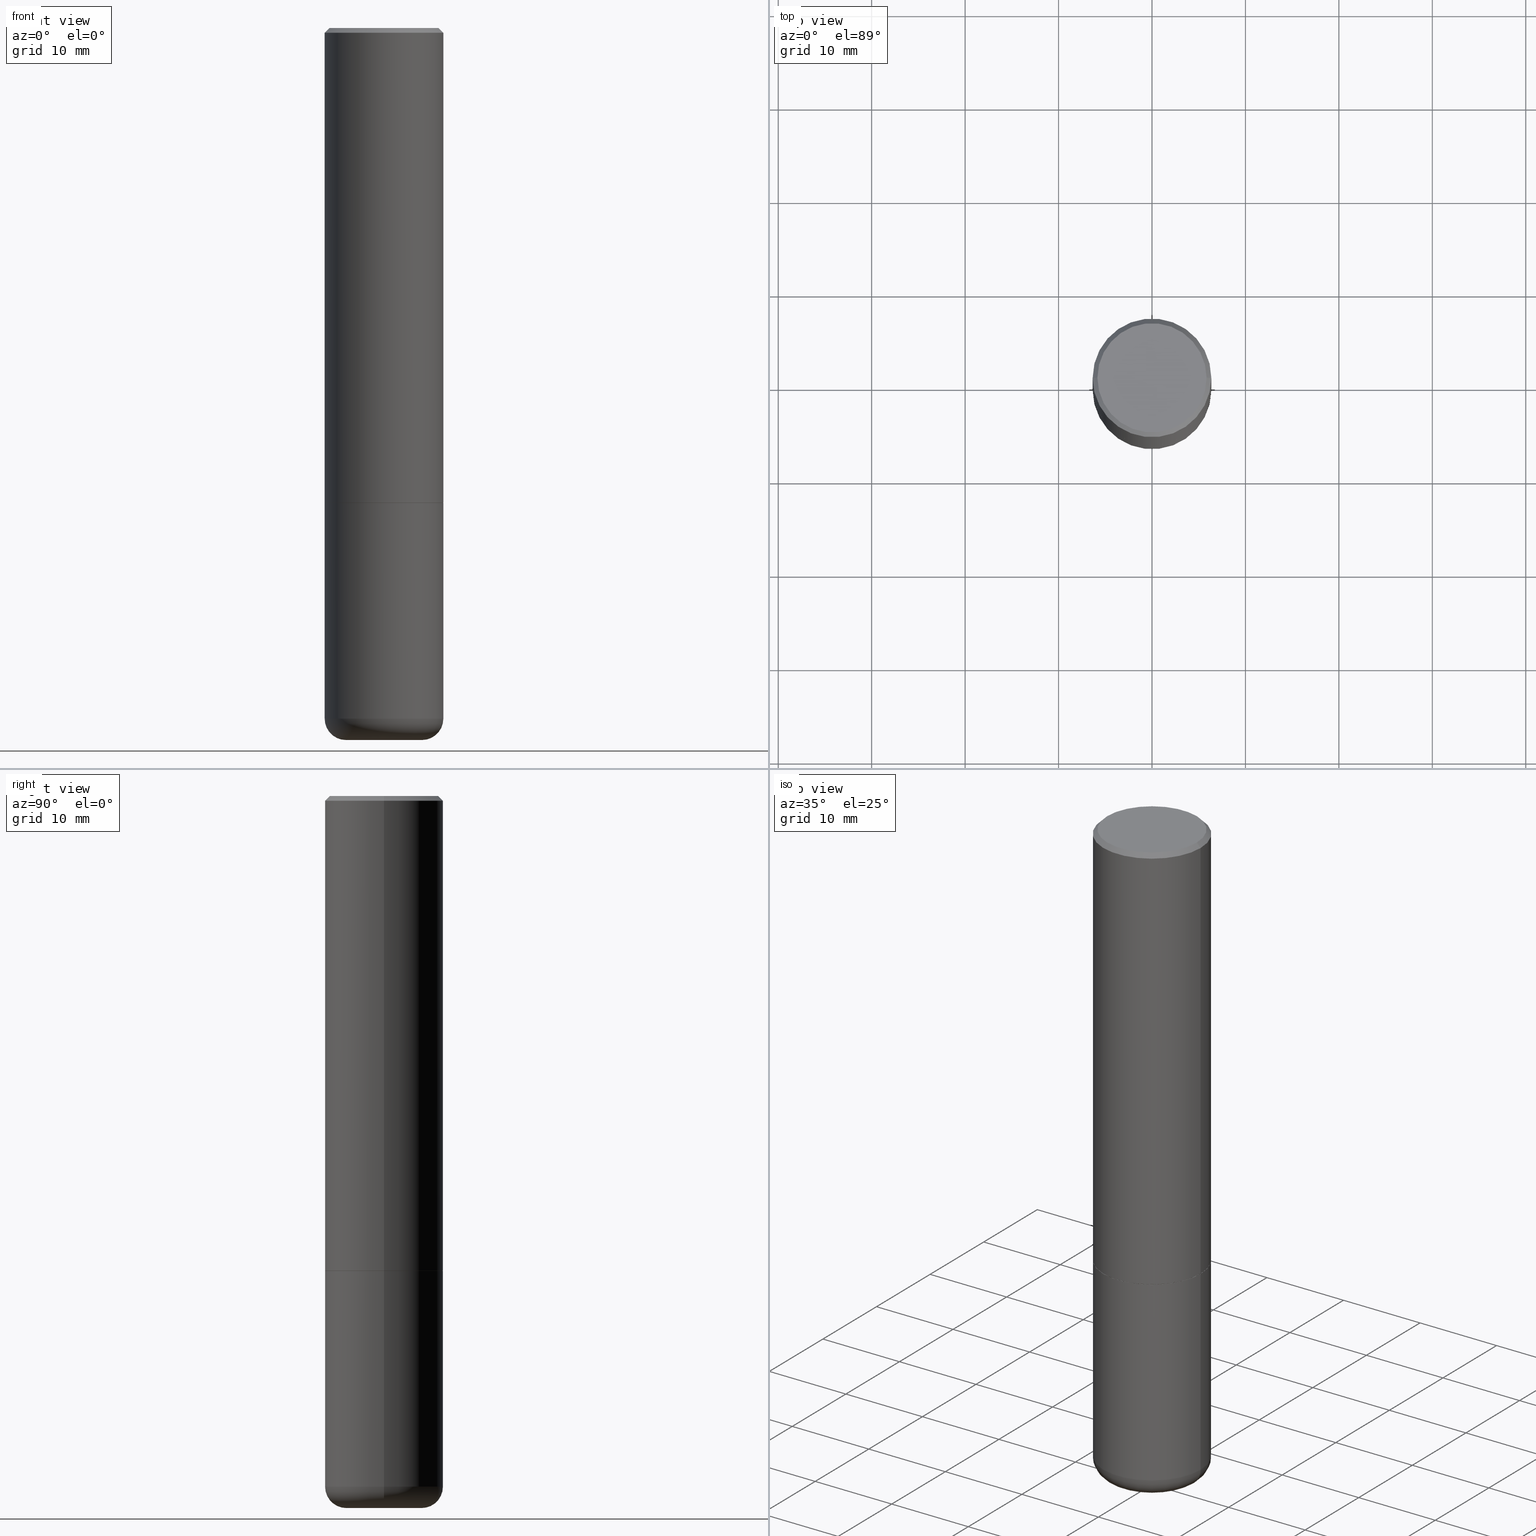
[diagram: canonical four-view strip — front | top / right | iso, engineering-drawing reading convention]
A machine part, canonical four-view strip (front | top / right | iso — engineering-drawing reading convention). The complete STEP part file that produces these views, byte-faithful:
ISO-10303-21;
HEADER;
FILE_DESCRIPTION (( 'STEP AP203' ),
    '1' );
FILE_NAME ('37040.STEP',
    '2024-03-01T19:04:54',
    ( '' ),
    ( '' ),
    'SwSTEP 2.0',
    'SolidWorks 2023',
    '' );
FILE_SCHEMA (( 'CONFIG_CONTROL_DESIGN' ));
ENDSEC;

DATA;
#1 = COORDINATED_UNIVERSAL_TIME_OFFSET ( 5, 0, .BEHIND. ) ;
#2 = CARTESIAN_POINT ( 'NONE',  ( -3.027169101572137302E-45, 4.321995194103296744E-31, 1.237868622129119302E-16 ) ) ;
#3 = DIRECTION ( 'NONE',  ( -2.445468806185136597E-29, 3.491481338843145583E-15, 1.000000000000000000 ) ) ;
#4 = AXIS2_PLACEMENT_3D ( 'NONE', #74, #37, #98 ) ;
#5 = LOCAL_TIME ( 14, 4, 54.00000000000000000, #389 ) ;
#6 = APPLICATION_CONTEXT ( 'configuration controlled 3d designs of mechanical parts and assemblies' ) ;
#7 = DATE_AND_TIME ( #295, #417 ) ;
#8 = CARTESIAN_POINT ( 'NONE',  ( 4.890937612370273754E-29, -6.982962677686291954E-15, -2.000000000000000444 ) ) ;
#9 = DIMENSIONAL_EXPONENTS ( 1.000000000000000000, 0.000000000000000000, 0.000000000000000000, 0.000000000000000000, 0.000000000000000000, 0.000000000000000000, 0.000000000000000000 ) ;
#10 = CARTESIAN_POINT ( 'NONE',  ( 1.449005363638153220E-28, -2.300140402884442060E-16, -2.999999999999999556 ) ) ;
#11 = AXIS2_PLACEMENT_3D ( 'NONE', #358, #217, #32 ) ;
#12 = AXIS2_PLACEMENT_3D ( 'NONE', #179, #81, #228 ) ;
#13 = VERTEX_POINT ( 'NONE', #351 ) ;
#14 = DIRECTION ( 'NONE',  ( -1.000000000000000000, 6.982962677686266711E-15, 0.000000000000000000 ) ) ;
#15 = FACE_OUTER_BOUND ( 'NONE', #275, .T. ) ;
#16 = ORIENTED_EDGE ( 'NONE', *, *, #342, .F. ) ;
#17 = CIRCLE ( 'NONE', #152, 0.2299999999999998712 ) ;
#18 = PRODUCT_DEFINITION_FORMATION_WITH_SPECIFIED_SOURCE ( 'ANY', '', #264, .NOT_KNOWN. ) ;
#19 = CARTESIAN_POINT ( 'NONE',  ( 4.890937612370287172E-31, -6.982962677686310098E-17, -0.02000000000000005593 ) ) ;
#20 = EDGE_LOOP ( 'NONE', ( #380, #202, #405, #44 ) ) ;
#21 = ORIENTED_EDGE ( 'NONE', *, *, #303, .F. ) ;
#22 = CARTESIAN_POINT ( 'NONE',  ( 0.2299999999999998712, -1.681434332853598419E-15, 1.237868622129234180E-16 ) ) ;
#23 = CARTESIAN_POINT ( 'NONE',  ( -0.2489999999999999991, -5.213711265643642498E-15, -2.000000000000000444 ) ) ;
#24 = ORIENTED_EDGE ( 'NONE', *, *, #362, .T. ) ;
#25 = ORIENTED_EDGE ( 'NONE', *, *, #49, .T. ) ;
#26 = EDGE_CURVE ( 'NONE', #247, #378, #17, .T. ) ;
#27 = EDGE_CURVE ( 'NONE', #168, #216, #34, .T. ) ;
#28 = FACE_OUTER_BOUND ( 'NONE', #59, .T. ) ;
#29 = ORIENTED_EDGE ( 'NONE', *, *, #261, .F. ) ;
#30 = DIRECTION ( 'NONE',  ( -1.000000000000000000, 6.982962677686266711E-15, 0.000000000000000000 ) ) ;
#31 = ORIENTED_EDGE ( 'NONE', *, *, #190, .T. ) ;
#32 = DIRECTION ( 'NONE',  ( 1.000000000000000000, -6.982962677686266711E-15, 4.876176775795935793E-29 ) ) ;
#33 = PERSON_AND_ORGANIZATION ( #292, #385 ) ;
#34 = CIRCLE ( 'NONE', #187, 0.08999999999999964972 ) ;
#35 = APPROVAL_PERSON_ORGANIZATION ( #121, #88, #125 ) ;
#36 = DIRECTION ( 'NONE',  ( -2.445468806185136877E-29, 3.491481338843145188E-15, 1.000000000000000000 ) ) ;
#37 = DIRECTION ( 'NONE',  ( -2.445468806185136597E-29, 3.491481338843145583E-15, 1.000000000000000000 ) ) ;
#38 = FACE_OUTER_BOUND ( 'NONE', #20, .T. ) ;
#39 = PERSON_AND_ORGANIZATION ( #292, #385 ) ;
#40 = CIRCLE ( 'NONE', #175, 0.2500000000000000000 ) ;
#41 = DIRECTION ( 'NONE',  ( 1.000000000000000000, -6.982962677686267499E-15, 4.876176775795936353E-29 ) ) ;
#42 = EDGE_CURVE ( 'NONE', #85, #13, #305, .T. ) ;
#43 = CARTESIAN_POINT ( 'NONE',  ( -0.2500000000000000000, 1.675911042644703577E-15, -0.02000000000000005593 ) ) ;
#44 = ORIENTED_EDGE ( 'NONE', *, *, #27, .F. ) ;
#45 = ADVANCED_BREP_SHAPE_REPRESENTATION ( '37040', ( #254, #255, #323 ), #206 ) ;
#46 = DIRECTION ( 'NONE',  ( -2.445468806185136597E-29, 3.491481338843145583E-15, 1.000000000000000000 ) ) ;
#47 = DATE_AND_TIME ( #299, #82 ) ;
#48 = VERTEX_POINT ( 'NONE', #343 ) ;
#49 = EDGE_CURVE ( 'NONE', #220, #13, #162, .T. ) ;
#50 = DIRECTION ( 'NONE',  ( -2.445468806185136597E-29, 3.491481338843145583E-15, 1.000000000000000000 ) ) ;
#51 = ORIENTED_EDGE ( 'NONE', *, *, #224, .F. ) ;
#52 = CARTESIAN_POINT ( 'NONE',  ( 4.890937612370287172E-31, -6.982962677686310098E-17, -0.02000000000000005593 ) ) ;
#53 = CLOSED_SHELL ( 'NONE', ( #76, #222, #415, #164, #294, #197 ) ) ;
#54 = CYLINDRICAL_SURFACE ( 'NONE', #354, 0.2500000000000001110 ) ;
#55 = CIRCLE ( 'NONE', #401, 0.1600000000000000033 ) ;
#56 = PRODUCT_RELATED_PRODUCT_CATEGORY ( 'detail', '', ( #264 ) ) ;
#57 = ORIENTED_EDGE ( 'NONE', *, *, #26, .F. ) ;
#58 = ORIENTED_EDGE ( 'NONE', *, *, #124, .T. ) ;
#59 = EDGE_LOOP ( 'NONE', ( #29, #313, #345, #375 ) ) ;
#60 = CARTESIAN_POINT ( 'NONE',  ( 7.116314225998749245E-29, -1.016021069603355467E-14, -2.910000000000000586 ) ) ;
#61 =( NAMED_UNIT ( * ) PLANE_ANGLE_UNIT ( ) SI_UNIT ( $, .RADIAN. ) );
#62 = EDGE_CURVE ( 'NONE', #302, #48, #95, .T. ) ;
#63 = CC_DESIGN_APPROVAL ( #88, ( #396 ) ) ;
#64 = LINE ( 'NONE', #23, #68 ) ;
#65 = DIRECTION ( 'NONE',  ( 2.445468806185136597E-29, -3.491481338843145583E-15, -1.000000000000000000 ) ) ;
#66 = PERSON_AND_ORGANIZATION_ROLE ( 'design_supplier' ) ;
#67 = CONICAL_SURFACE ( 'NONE', #89, 0.2489999999999999991, 0.7853981633975336552 ) ;
#68 = VECTOR ( 'NONE', #246, 39.37007874015748143 ) ;
#69 = SECURITY_CLASSIFICATION_LEVEL ( 'unclassified' ) ;
#70 = APPROVAL_STATUS ( 'not_yet_approved' ) ;
#71 = DIRECTION ( 'NONE',  ( 2.438088387897960049E-29, -3.491481338843145188E-15, -1.000000000000000000 ) ) ;
#72 = APPROVAL_ROLE ( '' ) ;
#73 = SHAPE_DEFINITION_REPRESENTATION ( #262, #45 ) ;
#74 = CARTESIAN_POINT ( 'NONE',  ( 7.116314225998749245E-29, -1.016021069603355467E-14, -2.910000000000000586 ) ) ;
#75 = CARTESIAN_POINT ( 'NONE',  ( 7.116314225998749245E-29, -1.016021069603355467E-14, -2.910000000000000586 ) ) ;
#76 = ADVANCED_FACE ( 'NONE', ( #219 ), #97, .T. ) ;
#77 = CIRCLE ( 'NONE', #252, 0.2500000000000002220 ) ;
#78 = ORIENTED_EDGE ( 'NONE', *, *, #293, .T. ) ;
#79 = ORIENTED_EDGE ( 'NONE', *, *, #42, .F. ) ;
#80 = ADVANCED_FACE ( 'NONE', ( #127 ), #103, .F. ) ;
#81 = DIRECTION ( 'NONE',  ( -2.445468806185136597E-29, 3.491481338843145583E-15, 1.000000000000000000 ) ) ;
#82 = LOCAL_TIME ( 14, 4, 54.00000000000000000, #332 ) ;
#83 = DIRECTION ( 'NONE',  ( 1.000000000000000000, -6.982962677686266711E-15, 0.000000000000000000 ) ) ;
#84 = DIRECTION ( 'NONE',  ( 0.7071067811866078578, -2.468850131082888544E-15, 0.7071067811864871766 ) ) ;
#85 = VERTEX_POINT ( 'NONE', #301 ) ;
#86 = DIRECTION ( 'NONE',  ( -2.445468806185136597E-29, 3.491481338843145583E-15, 1.000000000000000000 ) ) ;
#87 = ORIENTED_EDGE ( 'NONE', *, *, #267, .T. ) ;
#88 = APPROVAL ( #288, 'UNSPECIFIED' ) ;
#89 = AXIS2_PLACEMENT_3D ( 'NONE', #156, #381, #213 ) ;
#90 = CARTESIAN_POINT ( 'NONE',  ( 4.890937612370287172E-31, -6.982962677686310098E-17, -0.02000000000000005593 ) ) ;
#91 = ORIENTED_EDGE ( 'NONE', *, *, #352, .T. ) ;
#92 = DIRECTION ( 'NONE',  ( 1.000000000000000000, -6.982962677686266711E-15, 0.000000000000000000 ) ) ;
#93 = APPROVAL_DATE_TIME ( #7, #192 ) ;
#94 = PERSON_AND_ORGANIZATION ( #292, #385 ) ;
#95 = CIRCLE ( 'NONE', #384, 0.2500000000000000000 ) ;
#96 = AXIS2_PLACEMENT_3D ( 'NONE', #256, #3, #123 ) ;
#97 = CYLINDRICAL_SURFACE ( 'NONE', #11, 0.2500000000000000000 ) ;
#98 = DIRECTION ( 'NONE',  ( 1.000000000000000000, -6.982962677686265133E-15, 4.883557194083112340E-29 ) ) ;
#99 = EDGE_CURVE ( 'NONE', #263, #280, #395, .T. ) ;
#100 = DIRECTION ( 'NONE',  ( -2.438088387897960049E-29, 3.491481338843145188E-15, 1.000000000000000000 ) ) ;
#101 = LOCAL_TIME ( 14, 4, 54.00000000000000000, #1 ) ;
#102 = ORIENTED_EDGE ( 'NONE', *, *, #261, .T. ) ;
#103 = PLANE ( 'NONE',  #232 ) ;
#104 = LINE ( 'NONE', #231, #279 ) ;
#105 = ADVANCED_FACE ( 'NONE', ( #196 ), #165, .T. ) ;
#106 = CONICAL_SURFACE ( 'NONE', #96, 0.2489999999999999991, 0.7853981633975336552 ) ;
#107 = EDGE_LOOP ( 'NONE', ( #210, #102, #16, #139 ) ) ;
#108 = EDGE_CURVE ( 'NONE', #181, #220, #296, .T. ) ;
#109 = ORIENTED_EDGE ( 'NONE', *, *, #49, .F. ) ;
#110 = ORIENTED_EDGE ( 'NONE', *, *, #379, .T. ) ;
#111 = VECTOR ( 'NONE', #204, 39.37007874015748143 ) ;
#112 = CARTESIAN_POINT ( 'NONE',  ( 7.336406418555408669E-29, -1.047444401652943478E-14, -2.999999999999999556 ) ) ;
#113 = CARTESIAN_POINT ( 'NONE',  ( 4.890937612370273754E-29, -6.982962677686291954E-15, -2.000000000000000444 ) ) ;
#114 = ORIENTED_EDGE ( 'NONE', *, *, #190, .F. ) ;
#115 = CC_DESIGN_PERSON_AND_ORGANIZATION_ASSIGNMENT ( #321, #357, ( #234 ) ) ;
#116 = DIRECTION ( 'NONE',  ( 1.000000000000000000, -6.982962677686266711E-15, 4.876176775795935793E-29 ) ) ;
#117 = ORIENTED_EDGE ( 'NONE', *, *, #257, .F. ) ;
#118 = AXIS2_PLACEMENT_3D ( 'NONE', #239, #214, #209 ) ;
#119 = DATE_TIME_ROLE ( 'creation_date' ) ;
#120 = CC_DESIGN_PERSON_AND_ORGANIZATION_ASSIGNMENT ( #39, #66, ( #18 ) ) ;
#121 = PERSON_AND_ORGANIZATION ( #292, #385 ) ;
#122 = AXIS2_PLACEMENT_3D ( 'NONE', #113, #212, #314 ) ;
#123 = DIRECTION ( 'NONE',  ( 1.000000000000000000, -6.982962677686266711E-15, 0.000000000000000000 ) ) ;
#124 = EDGE_CURVE ( 'NONE', #378, #247, #289, .T. ) ;
#125 = APPROVAL_ROLE ( '' ) ;
#126 = DIRECTION ( 'NONE',  ( 2.438088387897960049E-29, -3.491481338843145188E-15, -1.000000000000000000 ) ) ;
#127 = FACE_OUTER_BOUND ( 'NONE', #245, .T. ) ;
#128 = AXIS2_PLACEMENT_3D ( 'NONE', #174, #201, #14 ) ;
#129 = EDGE_CURVE ( 'NONE', #216, #48, #390, .T. ) ;
#130 = DIRECTION ( 'NONE',  ( 1.000000000000000000, -6.982962677686270655E-15, 0.000000000000000000 ) ) ;
#131 = ADVANCED_FACE ( 'NONE', ( #189 ), #67, .T. ) ;
#132 = ORIENTED_EDGE ( 'NONE', *, *, #303, .T. ) ;
#133 = DIRECTION ( 'NONE',  ( -2.445468806185136597E-29, 3.491481338843145583E-15, 1.000000000000000000 ) ) ;
#134 = ORIENTED_EDGE ( 'NONE', *, *, #379, .F. ) ;
#135 = CARTESIAN_POINT ( 'NONE',  ( 0.000000000000000000, 0.000000000000000000, 0.000000000000000000 ) ) ;
#136 = CARTESIAN_POINT ( 'NONE',  ( 4.888492143564088712E-29, -6.979471196347448158E-15, -1.999000000000000110 ) ) ;
#137 = CARTESIAN_POINT ( 'NONE',  ( 4.888492143564088712E-29, -6.979471196347448158E-15, -1.999000000000000110 ) ) ;
#138 = EDGE_LOOP ( 'NONE', ( #185, #404, #31, #25 ) ) ;
#139 = ORIENTED_EDGE ( 'NONE', *, *, #129, .F. ) ;
#140 = EDGE_LOOP ( 'NONE', ( #157, #24, #237, #117 ) ) ;
#141 =( LENGTH_UNIT ( ) NAMED_UNIT ( * ) SI_UNIT ( $, .METRE. ) );
#142 = FACE_OUTER_BOUND ( 'NONE', #140, .T. ) ;
#143 = CIRCLE ( 'NONE', #118, 0.1600000000000000033 ) ;
#144 = CARTESIAN_POINT ( 'NONE',  ( 0.2500000000000000000, -1.745740669421566678E-15, 1.219044193948983948E-29 ) ) ;
#145 = DIRECTION ( 'NONE',  ( 1.000000000000000000, -6.982962677686265133E-15, 4.883557194083112340E-29 ) ) ;
#146 = DIRECTION ( 'NONE',  ( -2.445468806185136597E-29, 3.491481338843145583E-15, 1.000000000000000000 ) ) ;
#147 = DIRECTION ( 'NONE',  ( 0.000000000000000000, 0.000000000000000000, 1.000000000000000000 ) ) ;
#148 = DIRECTION ( 'NONE',  ( 1.000000000000000000, -6.982962677686266711E-15, 4.879110437680778240E-29 ) ) ;
#149 = ORIENTED_EDGE ( 'NONE', *, *, #62, .T. ) ;
#150 = CARTESIAN_POINT ( 'NONE',  ( -0.2500000000000002220, -1.748293572161901516E-15, -1.999000000000000110 ) ) ;
#151 = APPROVAL_ROLE ( '' ) ;
#152 = AXIS2_PLACEMENT_3D ( 'NONE', #172, #146, #281 ) ;
#153 = CIRCLE ( 'NONE', #315, 0.2489999999999999991 ) ;
#154 = ORIENTED_EDGE ( 'NONE', *, *, #224, .T. ) ;
#155 = PERSON_AND_ORGANIZATION_ROLE ( 'classification_officer' ) ;
#156 = CARTESIAN_POINT ( 'NONE',  ( 4.890937612370273754E-29, -6.982962677686291954E-15, -2.000000000000000444 ) ) ;
#157 = ORIENTED_EDGE ( 'NONE', *, *, #99, .F. ) ;
#158 = PERSON_AND_ORGANIZATION ( #292, #385 ) ;
#159 = APPROVAL_DATE_TIME ( #325, #355 ) ;
#160 = DATE_AND_TIME ( #418, #300 ) ;
#161 = ORIENTED_EDGE ( 'NONE', *, *, #26, .T. ) ;
#162 = CIRCLE ( 'NONE', #400, 0.2500000000000000000 ) ;
#163 = CC_DESIGN_PERSON_AND_ORGANIZATION_ASSIGNMENT ( #158, #155, ( #396 ) ) ;
#164 = ADVANCED_FACE ( 'NONE', ( #28 ), #319, .T. ) ;
#165 = CYLINDRICAL_SURFACE ( 'NONE', #205, 0.2500000000000001110 ) ;
#166 = AXIS2_PLACEMENT_3D ( 'NONE', #282, #414, #116 ) ;
#167 = TOROIDAL_SURFACE ( 'NONE', #269, 0.1600000000000000033, 0.08999999999999964972 ) ;
#168 = VERTEX_POINT ( 'NONE', #251 ) ;
#169 = ORIENTED_EDGE ( 'NONE', *, *, #108, .F. ) ;
#170 = DIRECTION ( 'NONE',  ( -2.445468806185136597E-29, 3.491481338843145583E-15, 1.000000000000000000 ) ) ;
#171 = ADVANCED_FACE ( 'NONE', ( #383 ), #407, .T. ) ;
#172 = CARTESIAN_POINT ( 'NONE',  ( -3.027169101572137302E-45, 4.321995194103296744E-31, 1.237868622129119302E-16 ) ) ;
#173 = CARTESIAN_POINT ( 'NONE',  ( 0.2499999999999998335, -1.190595136545512292E-14, -2.910000000000000586 ) ) ;
#174 = CARTESIAN_POINT ( 'NONE',  ( 4.890937612370287172E-31, -6.982962677686310098E-17, -0.02000000000000005593 ) ) ;
#175 = AXIS2_PLACEMENT_3D ( 'NONE', #60, #133, #184 ) ;
#176 = DIRECTION ( 'NONE',  ( -2.445468806185136597E-29, 3.491481338843145583E-15, 1.000000000000000000 ) ) ;
#177 = PLANE ( 'NONE',  #244 ) ;
#178 = ORIENTED_EDGE ( 'NONE', *, *, #108, .T. ) ;
#179 = CARTESIAN_POINT ( 'NONE',  ( 4.890937612370273754E-29, -6.982962677686291954E-15, -2.000000000000000444 ) ) ;
#180 = DIRECTION ( 'NONE',  ( 1.000000000000000000, -6.982962677686266711E-15, 0.000000000000000000 ) ) ;
#181 = VERTEX_POINT ( 'NONE', #150 ) ;
#182 = CC_DESIGN_DATE_AND_TIME_ASSIGNMENT ( #160, #119, ( #234 ) ) ;
#183 = DIRECTION ( 'NONE',  ( 1.000000000000000000, -6.982962677686271444E-15, 0.000000000000000000 ) ) ;
#184 = DIRECTION ( 'NONE',  ( 1.000000000000000000, -6.982962677686270655E-15, 0.000000000000000000 ) ) ;
#185 = ORIENTED_EDGE ( 'NONE', *, *, #267, .F. ) ;
#186 = AXIS2_PLACEMENT_3D ( 'NONE', #75, #344, #130 ) ;
#187 = AXIS2_PLACEMENT_3D ( 'NONE', #413, #371, #340 ) ;
#188 = CONICAL_SURFACE ( 'NONE', #128, 0.2500000000000000000, 0.7853981633974471688 ) ;
#189 = FACE_OUTER_BOUND ( 'NONE', #283, .T. ) ;
#190 = EDGE_CURVE ( 'NONE', #378, #220, #367, .T. ) ;
#191 = CALENDAR_DATE ( 2024, 1, 3 ) ;
#192 = APPROVAL ( #359, 'UNSPECIFIED' ) ;
#193 = VECTOR ( 'NONE', #36, 39.37007874015748143 ) ;
#194 = PLANE ( 'NONE',  #322 ) ;
#195 = APPROVAL_PERSON_ORGANIZATION ( #94, #192, #72 ) ;
#196 = FACE_OUTER_BOUND ( 'NONE', #402, .T. ) ;
#197 = ADVANCED_FACE ( 'NONE', ( #368 ), #194, .T. ) ;
#198 = APPROVAL_DATE_TIME ( #47, #88 ) ;
#199 = DIRECTION ( 'NONE',  ( -2.445468806185136877E-29, 3.491481338843145188E-15, 1.000000000000000000 ) ) ;
#200 = TOROIDAL_SURFACE ( 'NONE', #4, 0.1600000000000000033, 0.08999999999999964972 ) ;
#201 = DIRECTION ( 'NONE',  ( 2.445468806185136597E-29, -3.491481338843145583E-15, -1.000000000000000000 ) ) ;
#202 = ORIENTED_EDGE ( 'NONE', *, *, #99, .T. ) ;
#203 = CARTESIAN_POINT ( 'NONE',  ( -0.1600000000000000033, -8.860714747973291991E-15, -2.999999999999999556 ) ) ;
#204 = DIRECTION ( 'NONE',  ( -2.445468806185136877E-29, 3.491481338843145188E-15, 1.000000000000000000 ) ) ;
#205 = AXIS2_PLACEMENT_3D ( 'NONE', #331, #46, #41 ) ;
#206 =( GEOMETRIC_REPRESENTATION_CONTEXT ( 3 ) GLOBAL_UNCERTAINTY_ASSIGNED_CONTEXT ( ( #374 ) ) GLOBAL_UNIT_ASSIGNED_CONTEXT ( ( #208, #61, #349 ) ) REPRESENTATION_CONTEXT ( 'NONE', 'WORKASPACE' ) );
#207 = APPLICATION_CONTEXT ( 'configuration controlled 3d designs of mechanical parts and assemblies' ) ;
#208 =( CONVERSION_BASED_UNIT ( 'INCH', #211 ) LENGTH_UNIT ( ) NAMED_UNIT ( #9 ) );
#209 = DIRECTION ( 'NONE',  ( 1.000000000000000000, -6.982962677686271444E-15, 0.000000000000000000 ) ) ;
#210 = ORIENTED_EDGE ( 'NONE', *, *, #399, .T. ) ;
#211 = LENGTH_MEASURE_WITH_UNIT ( LENGTH_MEASURE( 0.02539999999999999897 ), #141 );
#212 = DIRECTION ( 'NONE',  ( -2.445468806185136597E-29, 3.491481338843145583E-15, 1.000000000000000000 ) ) ;
#213 = DIRECTION ( 'NONE',  ( 1.000000000000000000, -6.982962677686266711E-15, 0.000000000000000000 ) ) ;
#214 = DIRECTION ( 'NONE',  ( -2.445468806185136597E-29, 3.491481338843145583E-15, 1.000000000000000000 ) ) ;
#215 = AXIS2_PLACEMENT_3D ( 'NONE', #8, #126, #346 ) ;
#216 = VERTEX_POINT ( 'NONE', #173 ) ;
#217 = DIRECTION ( 'NONE',  ( -2.445468806185136597E-29, 3.491481338843145583E-15, 1.000000000000000000 ) ) ;
#218 = COORDINATED_UNIVERSAL_TIME_OFFSET ( 5, 0, .BEHIND. ) ;
#219 = FACE_OUTER_BOUND ( 'NONE', #107, .T. ) ;
#220 = VERTEX_POINT ( 'NONE', #326 ) ;
#221 = APPLICATION_PROTOCOL_DEFINITION ( 'international standard', 'config_control_design', 1994, #6 ) ;
#222 = ADVANCED_FACE ( 'NONE', ( #38 ), #200, .T. ) ;
#223 = ADVANCED_FACE ( 'NONE', ( #226 ), #188, .T. ) ;
#224 = EDGE_CURVE ( 'NONE', #253, #285, #286, .T. ) ;
#225 = CC_DESIGN_APPROVAL ( #355, ( #18 ) ) ;
#226 = FACE_OUTER_BOUND ( 'NONE', #235, .T. ) ;
#227 = CARTESIAN_POINT ( 'NONE',  ( 4.890937612370273754E-29, -6.982962677686291954E-15, -2.000000000000000444 ) ) ;
#228 = DIRECTION ( 'NONE',  ( 1.000000000000000000, -6.982962677686266711E-15, 0.000000000000000000 ) ) ;
#229 = DIRECTION ( 'NONE',  ( 1.000000000000000000, -6.982962677686265922E-15, 4.876176775795935793E-29 ) ) ;
#230 = ADVANCED_FACE ( 'NONE', ( #312 ), #54, .T. ) ;
#231 = CARTESIAN_POINT ( 'NONE',  ( -0.2500000000000000000, 1.776356839400250465E-15, -1.229733772563726445E-29 ) ) ;
#232 = AXIS2_PLACEMENT_3D ( 'NONE', #227, #100, #229 ) ;
#233 = AXIS2_PLACEMENT_3D ( 'NONE', #136, #274, #241 ) ;
#234 = PRODUCT_DEFINITION ( 'UNKNOWN', '', #18, #329 ) ;
#235 = EDGE_LOOP ( 'NONE', ( #57, #87, #110, #114 ) ) ;
#236 = CARTESIAN_POINT ( 'NONE',  ( 0.2500000000000000000, -1.784954126219746189E-15, -0.02000000000000005593 ) ) ;
#237 = ORIENTED_EDGE ( 'NONE', *, *, #27, .T. ) ;
#238 = CARTESIAN_POINT ( 'NONE',  ( -0.2489999999999999991, -5.208412811295419307E-15, -2.000000000000000444 ) ) ;
#239 = CARTESIAN_POINT ( 'NONE',  ( 7.336406418555408669E-29, -1.047444401652943478E-14, -2.999999999999999556 ) ) ;
#240 = EDGE_LOOP ( 'NONE', ( #410, #149 ) ) ;
#241 = DIRECTION ( 'NONE',  ( 1.000000000000000000, -6.982962677686268288E-15, 0.000000000000000000 ) ) ;
#242 = DIRECTION ( 'NONE',  ( -2.445468806185136597E-29, 3.491481338843145583E-15, 1.000000000000000000 ) ) ;
#243 = VECTOR ( 'NONE', #411, 39.37007874015748143 ) ;
#244 = AXIS2_PLACEMENT_3D ( 'NONE', #341, #271, #268 ) ;
#245 = EDGE_LOOP ( 'NONE', ( #51, #21 ) ) ;
#246 = DIRECTION ( 'NONE',  ( -0.7071067811866078578, 7.493145998870571886E-15, 0.7071067811864871766 ) ) ;
#247 = VERTEX_POINT ( 'NONE', #22 ) ;
#248 = DIRECTION ( 'NONE',  ( -2.445468806185136597E-29, 3.491481338843145583E-15, 1.000000000000000000 ) ) ;
#249 = ADVANCED_FACE ( 'NONE', ( #15 ), #177, .F. ) ;
#250 = DIRECTION ( 'NONE',  ( 1.000000000000000000, 0.000000000000000000, 0.000000000000000000 ) ) ;
#251 = CARTESIAN_POINT ( 'NONE',  ( 0.1600000000000000033, -1.159171804495923808E-14, -2.999999999999999556 ) ) ;
#252 = AXIS2_PLACEMENT_3D ( 'NONE', #137, #242, #412 ) ;
#253 = VERTEX_POINT ( 'NONE', #397 ) ;
#254 = MANIFOLD_SOLID_BREP ( 'Body-Move/Copy2[1]', #53 ) ;
#255 = MANIFOLD_SOLID_BREP ( 'Body-Move/Copy2[2]', #353 ) ;
#256 = CARTESIAN_POINT ( 'NONE',  ( 4.890937612370273754E-29, -6.982962677686291954E-15, -2.000000000000000444 ) ) ;
#257 = EDGE_CURVE ( 'NONE', #280, #216, #336, .T. ) ;
#258 = DIRECTION ( 'NONE',  ( 1.000000000000000000, -6.982962677686266711E-15, 0.000000000000000000 ) ) ;
#259 = AXIS2_PLACEMENT_3D ( 'NONE', #369, #333, #364 ) ;
#260 = CIRCLE ( 'NONE', #122, 0.2500000000000000000 ) ;
#261 = EDGE_CURVE ( 'NONE', #280, #302, #104, .T. ) ;
#262 = PRODUCT_DEFINITION_SHAPE ( 'NONE', 'NONE',  #234 ) ;
#263 = VERTEX_POINT ( 'NONE', #203 ) ;
#264 = PRODUCT ( '37040', '37040', '', ( #382 ) ) ;
#265 = AXIS2_PLACEMENT_3D ( 'NONE', #2, #287, #148 ) ;
#266 = CC_DESIGN_APPROVAL ( #192, ( #234 ) ) ;
#267 = EDGE_CURVE ( 'NONE', #247, #13, #310, .T. ) ;
#268 = DIRECTION ( 'NONE',  ( -1.000000000000000000, 6.982962677686265922E-15, -4.876176775795935793E-29 ) ) ;
#269 = AXIS2_PLACEMENT_3D ( 'NONE', #377, #86, #145 ) ;
#270 = ORIENTED_EDGE ( 'NONE', *, *, #293, .F. ) ;
#271 = DIRECTION ( 'NONE',  ( 2.438088387897960049E-29, -3.491481338843145188E-15, -1.000000000000000000 ) ) ;
#272 = CARTESIAN_POINT ( 'NONE',  ( 0.2489999999999999991, -8.721720384430172617E-15, -2.000000000000000444 ) ) ;
#273 = ORIENTED_EDGE ( 'NONE', *, *, #339, .T. ) ;
#274 = DIRECTION ( 'NONE',  ( -2.445468806185136597E-29, 3.491481338843145583E-15, 1.000000000000000000 ) ) ;
#275 = EDGE_LOOP ( 'NONE', ( #58, #161 ) ) ;
#276 = EDGE_LOOP ( 'NONE', ( #78, #178, #134, #79 ) ) ;
#277 = EDGE_LOOP ( 'NONE', ( #386, #348 ) ) ;
#278 = CARTESIAN_POINT ( 'NONE',  ( 4.890937612370273754E-29, -6.982962677686291954E-15, -2.000000000000000444 ) ) ;
#279 = VECTOR ( 'NONE', #199, 39.37007874015748143 ) ;
#280 = VERTEX_POINT ( 'NONE', #403 ) ;
#281 = DIRECTION ( 'NONE',  ( 1.000000000000000000, -6.982962677686266711E-15, 4.879110437680778240E-29 ) ) ;
#282 = CARTESIAN_POINT ( 'NONE',  ( 0.000000000000000000, 0.000000000000000000, 0.000000000000000000 ) ) ;
#283 = EDGE_LOOP ( 'NONE', ( #154, #388, #270, #337 ) ) ;
#284 = CARTESIAN_POINT ( 'NONE',  ( 4.890937612370273754E-29, -6.982962677686291954E-15, -2.000000000000000444 ) ) ;
#285 = VERTEX_POINT ( 'NONE', #238 ) ;
#286 = CIRCLE ( 'NONE', #12, 0.2489999999999999991 ) ;
#287 = DIRECTION ( 'NONE',  ( -2.445468806185136597E-29, 3.491481338843145583E-15, 1.000000000000000000 ) ) ;
#288 = APPROVAL_STATUS ( 'not_yet_approved' ) ;
#289 = CIRCLE ( 'NONE', #265, 0.2299999999999998712 ) ;
#290 = PERSON_AND_ORGANIZATION ( #292, #385 ) ;
#291 = CC_DESIGN_SECURITY_CLASSIFICATION ( #396, ( #18 ) ) ;
#292 = PERSON ( 'UNSPECIFIED', 'UNSPECIFIED', 'UNSPECIFIED', ('UNSPECIFIED'), ('UNSPECIFIED'), ('UNSPECIFIED') ) ;
#293 = EDGE_CURVE ( 'NONE', #85, #181, #376, .T. ) ;
#294 = ADVANCED_FACE ( 'NONE', ( #142 ), #167, .T. ) ;
#295 = CALENDAR_DATE ( 2024, 1, 3 ) ;
#296 = LINE ( 'NONE', #363, #193 ) ;
#297 = PLANE ( 'NONE',  #215 ) ;
#298 = DIRECTION ( 'NONE',  ( -0.7071067811865466846, 2.468850131082247989E-15, -0.7071067811865483499 ) ) ;
#299 = CALENDAR_DATE ( 2024, 1, 3 ) ;
#300 = LOCAL_TIME ( 14, 4, 54.00000000000000000, #393 ) ;
#301 = CARTESIAN_POINT ( 'NONE',  ( 0.2500000000000002220, -8.725211865769017202E-15, -1.999000000000000110 ) ) ;
#302 = VERTEX_POINT ( 'NONE', #398 ) ;
#303 = EDGE_CURVE ( 'NONE', #285, #253, #153, .T. ) ;
#304 = FACE_OUTER_BOUND ( 'NONE', #365, .T. ) ;
#305 = LINE ( 'NONE', #373, #111 ) ;
#306 = DIRECTION ( 'NONE',  ( 0.7071067811865466846, -7.319954787623252890E-15, -0.7071067811865483499 ) ) ;
#307 = AXIS2_PLACEMENT_3D ( 'NONE', #19, #248, #180 ) ;
#308 = LINE ( 'NONE', #272, #366 ) ;
#309 = ORIENTED_EDGE ( 'NONE', *, *, #339, .F. ) ;
#310 = LINE ( 'NONE', #236, #356 ) ;
#311 = ORIENTED_EDGE ( 'NONE', *, *, #387, .F. ) ;
#312 = FACE_OUTER_BOUND ( 'NONE', #276, .T. ) ;
#313 = ORIENTED_EDGE ( 'NONE', *, *, #257, .T. ) ;
#314 = DIRECTION ( 'NONE',  ( 1.000000000000000000, -6.982962677686266711E-15, 0.000000000000000000 ) ) ;
#315 = AXIS2_PLACEMENT_3D ( 'NONE', #278, #409, #83 ) ;
#316 = ORIENTED_EDGE ( 'NONE', *, *, #42, .T. ) ;
#317 = APPLICATION_PROTOCOL_DEFINITION ( 'international standard', 'config_control_design', 1994, #207 ) ;
#318 = EDGE_CURVE ( 'NONE', #168, #263, #55, .T. ) ;
#319 = CYLINDRICAL_SURFACE ( 'NONE', #166, 0.2500000000000000000 ) ;
#320 = CALENDAR_DATE ( 2024, 1, 3 ) ;
#321 = PERSON_AND_ORGANIZATION ( #292, #385 ) ;
#322 = AXIS2_PLACEMENT_3D ( 'NONE', #10, #71, #360 ) ;
#323 = AXIS2_PLACEMENT_3D ( 'NONE', #135, #147, #250 ) ;
#324 = DATE_AND_TIME ( #320, #101 ) ;
#325 = DATE_AND_TIME ( #191, #5 ) ;
#326 = CARTESIAN_POINT ( 'NONE',  ( -0.2500000000000000000, 1.675911042644703577E-15, -0.02000000000000005593 ) ) ;
#327 = PERSON_AND_ORGANIZATION_ROLE ( 'creator' ) ;
#328 = ADVANCED_FACE ( 'NONE', ( #304 ), #106, .T. ) ;
#329 = DESIGN_CONTEXT ( 'detailed design', #6, 'design' ) ;
#330 = CIRCLE ( 'NONE', #307, 0.2500000000000000000 ) ;
#331 = CARTESIAN_POINT ( 'NONE',  ( 0.000000000000000000, 0.000000000000000000, 0.000000000000000000 ) ) ;
#332 = COORDINATED_UNIVERSAL_TIME_OFFSET ( 5, 0, .BEHIND. ) ;
#333 = DIRECTION ( 'NONE',  ( 7.105427357601001859E-15, 1.000000000000000000, -3.491481338843145583E-15 ) ) ;
#334 = VECTOR ( 'NONE', #298, 39.37007874015748143 ) ;
#335 = DIRECTION ( 'NONE',  ( 1.000000000000000000, -6.982962677686267499E-15, 4.876176775795936353E-29 ) ) ;
#336 = CIRCLE ( 'NONE', #186, 0.2500000000000000000 ) ;
#337 = ORIENTED_EDGE ( 'NONE', *, *, #352, .F. ) ;
#338 = CARTESIAN_POINT ( 'NONE',  ( 0.000000000000000000, 0.000000000000000000, 0.000000000000000000 ) ) ;
#339 = EDGE_CURVE ( 'NONE', #181, #85, #77, .T. ) ;
#340 = DIRECTION ( 'NONE',  ( 1.000000000000000000, -6.982962677686273810E-15, 0.000000000000000000 ) ) ;
#341 = CARTESIAN_POINT ( 'NONE',  ( 1.606081415867840278E-15, 0.2299999999999998712, -7.411472768274671077E-16 ) ) ;
#342 = EDGE_CURVE ( 'NONE', #48, #302, #260, .T. ) ;
#343 = CARTESIAN_POINT ( 'NONE',  ( 0.2500000000000000000, -8.728703347107858632E-15, -2.000000000000000444 ) ) ;
#344 = DIRECTION ( 'NONE',  ( -2.445468806185136597E-29, 3.491481338843145583E-15, 1.000000000000000000 ) ) ;
#345 = ORIENTED_EDGE ( 'NONE', *, *, #129, .T. ) ;
#346 = DIRECTION ( 'NONE',  ( -1.000000000000000000, 6.982962677686265922E-15, -4.876176775795935793E-29 ) ) ;
#347 = CARTESIAN_POINT ( 'NONE',  ( -0.2299999999999998712, 1.640996229256272125E-15, 1.237868622129005656E-16 ) ) ;
#348 = ORIENTED_EDGE ( 'NONE', *, *, #362, .F. ) ;
#349 =( NAMED_UNIT ( * ) SI_UNIT ( $, .STERADIAN. ) SOLID_ANGLE_UNIT ( ) );
#350 = FACE_OUTER_BOUND ( 'NONE', #240, .T. ) ;
#351 = CARTESIAN_POINT ( 'NONE',  ( 0.2500000000000000000, -1.784954126219746189E-15, -0.02000000000000005593 ) ) ;
#352 = EDGE_CURVE ( 'NONE', #253, #85, #308, .T. ) ;
#353 = CLOSED_SHELL ( 'NONE', ( #131, #230, #223, #171, #105, #328, #80, #249 ) ) ;
#354 = AXIS2_PLACEMENT_3D ( 'NONE', #338, #170, #335 ) ;
#355 = APPROVAL ( #70, 'UNSPECIFIED' ) ;
#356 = VECTOR ( 'NONE', #306, 39.37007874015748143 ) ;
#357 = PERSON_AND_ORGANIZATION_ROLE ( 'creator' ) ;
#358 = CARTESIAN_POINT ( 'NONE',  ( 0.000000000000000000, 0.000000000000000000, 0.000000000000000000 ) ) ;
#359 = APPROVAL_STATUS ( 'not_yet_approved' ) ;
#360 = DIRECTION ( 'NONE',  ( -1.000000000000000000, 6.982962677686265922E-15, -4.876176775795935793E-29 ) ) ;
#361 = PERSON_AND_ORGANIZATION_ROLE ( 'design_owner' ) ;
#362 = EDGE_CURVE ( 'NONE', #263, #168, #143, .T. ) ;
#363 = CARTESIAN_POINT ( 'NONE',  ( -0.2500000000000001110, 1.776356839400251254E-15, -1.229733772563727146E-29 ) ) ;
#364 = DIRECTION ( 'NONE',  ( -1.000000000000000000, 7.105427357600996337E-15, 0.000000000000000000 ) ) ;
#365 = EDGE_LOOP ( 'NONE', ( #311, #132, #91, #309 ) ) ;
#366 = VECTOR ( 'NONE', #84, 39.37007874015748143 ) ;
#367 = LINE ( 'NONE', #43, #334 ) ;
#368 = FACE_OUTER_BOUND ( 'NONE', #277, .T. ) ;
#369 = CARTESIAN_POINT ( 'NONE',  ( -0.1600000000000000033, -9.023342318817394938E-15, -2.910000000000000586 ) ) ;
#370 = AXIS2_PLACEMENT_3D ( 'NONE', #90, #65, #30 ) ;
#371 = DIRECTION ( 'NONE',  ( -6.982962677686266711E-15, -1.000000000000000000, 3.491481338843145583E-15 ) ) ;
#372 = CC_DESIGN_PERSON_AND_ORGANIZATION_ASSIGNMENT ( #391, #361, ( #264 ) ) ;
#373 = CARTESIAN_POINT ( 'NONE',  ( 0.2500000000000001110, -1.745740669421567664E-15, 1.219044193948984649E-29 ) ) ;
#374 = UNCERTAINTY_MEASURE_WITH_UNIT (LENGTH_MEASURE( 1.000000000000000082E-05 ), #208, 'distance_accuracy_value', 'NONE');
#375 = ORIENTED_EDGE ( 'NONE', *, *, #62, .F. ) ;
#376 = CIRCLE ( 'NONE', #233, 0.2500000000000002220 ) ;
#377 = CARTESIAN_POINT ( 'NONE',  ( 7.116314225998749245E-29, -1.016021069603355467E-14, -2.910000000000000586 ) ) ;
#378 = VERTEX_POINT ( 'NONE', #347 ) ;
#379 = EDGE_CURVE ( 'NONE', #13, #220, #330, .T. ) ;
#380 = ORIENTED_EDGE ( 'NONE', *, *, #318, .T. ) ;
#381 = DIRECTION ( 'NONE',  ( -2.445468806185136597E-29, 3.491481338843145583E-15, 1.000000000000000000 ) ) ;
#382 = MECHANICAL_CONTEXT ( 'NONE', #207, 'mechanical' ) ;
#383 = FACE_OUTER_BOUND ( 'NONE', #138, .T. ) ;
#384 = AXIS2_PLACEMENT_3D ( 'NONE', #284, #392, #92 ) ;
#385 = ORGANIZATION ( 'UNSPECIFIED', 'UNSPECIFIED', '' ) ;
#386 = ORIENTED_EDGE ( 'NONE', *, *, #318, .F. ) ;
#387 = EDGE_CURVE ( 'NONE', #285, #181, #64, .T. ) ;
#388 = ORIENTED_EDGE ( 'NONE', *, *, #387, .T. ) ;
#389 = COORDINATED_UNIVERSAL_TIME_OFFSET ( 5, 0, .BEHIND. ) ;
#390 = LINE ( 'NONE', #144, #243 ) ;
#391 = PERSON_AND_ORGANIZATION ( #292, #385 ) ;
#392 = DIRECTION ( 'NONE',  ( -2.445468806185136597E-29, 3.491481338843145583E-15, 1.000000000000000000 ) ) ;
#393 = COORDINATED_UNIVERSAL_TIME_OFFSET ( 5, 0, .BEHIND. ) ;
#394 = CC_DESIGN_PERSON_AND_ORGANIZATION_ASSIGNMENT ( #290, #327, ( #18 ) ) ;
#395 = CIRCLE ( 'NONE', #259, 0.08999999999999964972 ) ;
#396 = SECURITY_CLASSIFICATION ( '', '', #69 ) ;
#397 = CARTESIAN_POINT ( 'NONE',  ( 0.2489999999999999991, -8.721720384430172617E-15, -2.000000000000000444 ) ) ;
#398 = CARTESIAN_POINT ( 'NONE',  ( -0.2500000000000000000, -6.795229847459672846E-15, -2.000000000000000444 ) ) ;
#399 = EDGE_CURVE ( 'NONE', #216, #280, #40, .T. ) ;
#400 = AXIS2_PLACEMENT_3D ( 'NONE', #52, #176, #258 ) ;
#401 = AXIS2_PLACEMENT_3D ( 'NONE', #112, #50, #183 ) ;
#402 = EDGE_LOOP ( 'NONE', ( #169, #273, #316, #109 ) ) ;
#403 = CARTESIAN_POINT ( 'NONE',  ( -0.2499999999999998335, -8.383853856633305780E-15, -2.910000000000000586 ) ) ;
#404 = ORIENTED_EDGE ( 'NONE', *, *, #124, .F. ) ;
#405 = ORIENTED_EDGE ( 'NONE', *, *, #399, .F. ) ;
#406 = CC_DESIGN_DATE_AND_TIME_ASSIGNMENT ( #324, #416, ( #396 ) ) ;
#407 = CONICAL_SURFACE ( 'NONE', #370, 0.2500000000000000000, 0.7853981633974471688 ) ;
#408 = APPROVAL_PERSON_ORGANIZATION ( #33, #355, #151 ) ;
#409 = DIRECTION ( 'NONE',  ( -2.445468806185136597E-29, 3.491481338843145583E-15, 1.000000000000000000 ) ) ;
#410 = ORIENTED_EDGE ( 'NONE', *, *, #342, .T. ) ;
#411 = DIRECTION ( 'NONE',  ( -2.445468806185136877E-29, 3.491481338843145188E-15, 1.000000000000000000 ) ) ;
#412 = DIRECTION ( 'NONE',  ( 1.000000000000000000, -6.982962677686268288E-15, 0.000000000000000000 ) ) ;
#413 = CARTESIAN_POINT ( 'NONE',  ( 0.1600000000000000033, -1.127748472446335797E-14, -2.910000000000000586 ) ) ;
#414 = DIRECTION ( 'NONE',  ( -2.445468806185136597E-29, 3.491481338843145583E-15, 1.000000000000000000 ) ) ;
#415 = ADVANCED_FACE ( 'NONE', ( #350 ), #297, .F. ) ;
#416 = DATE_TIME_ROLE ( 'classification_date' ) ;
#417 = LOCAL_TIME ( 14, 4, 54.00000000000000000, #218 ) ;
#418 = CALENDAR_DATE ( 2024, 1, 3 ) ;
ENDSEC;
END-ISO-10303-21;
